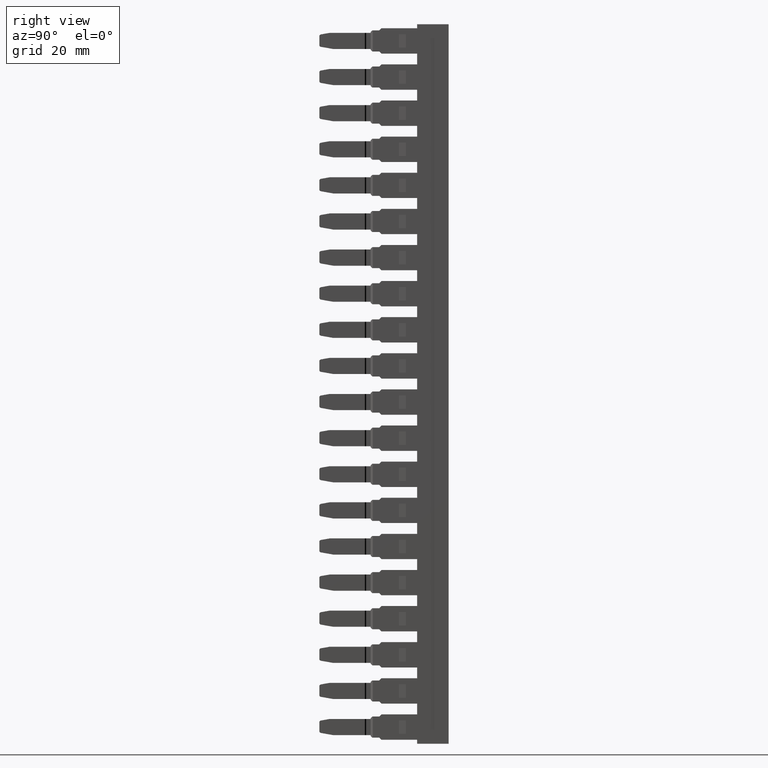
[diagram: clean part render]
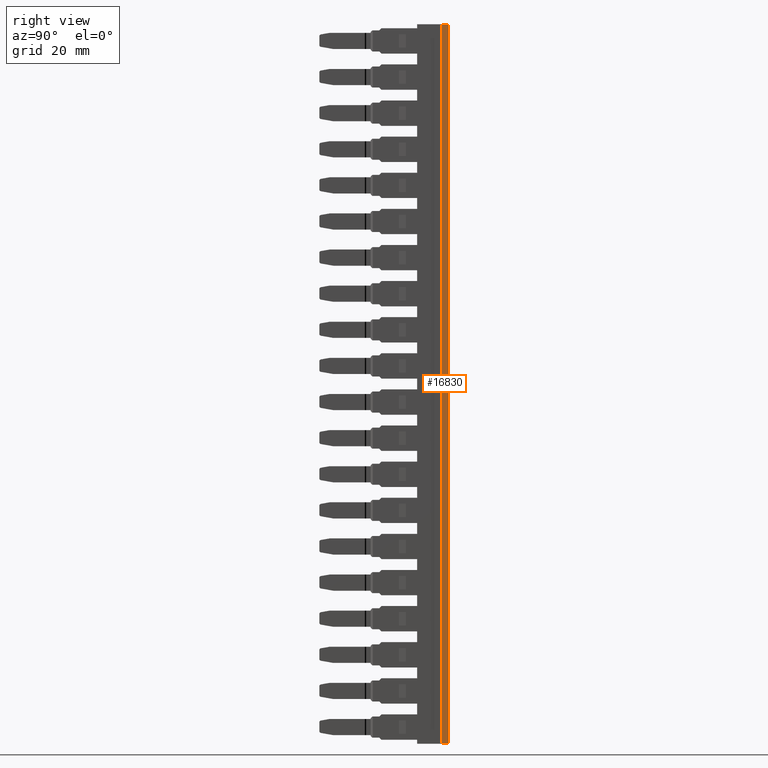
[diagram: same view with one face highlighted and labeled with its STEP entity id]
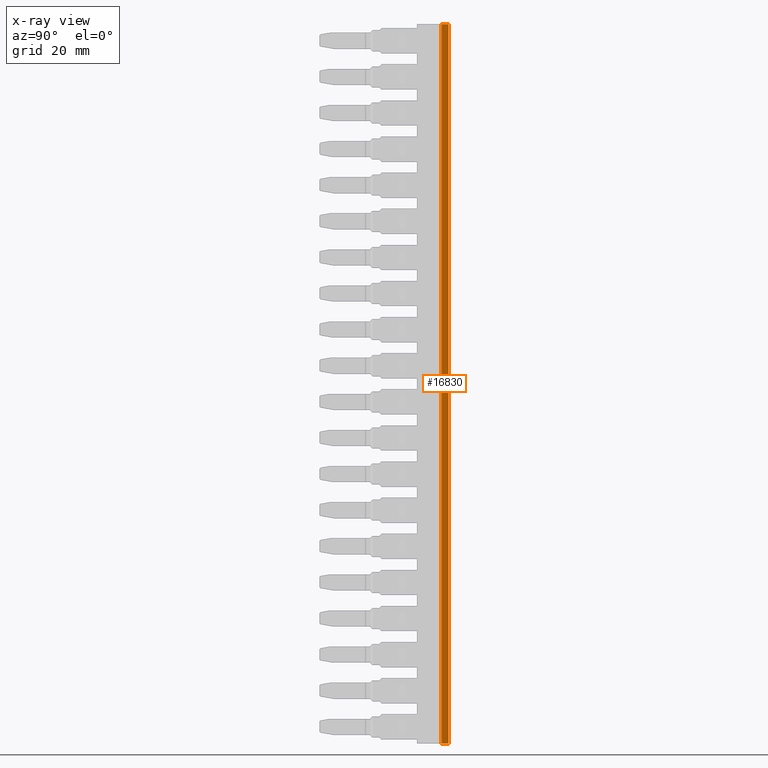
[diagram: x-ray of the same camera — body ghosted, the highlighted face saturated]
A machine part, right view. The second image highlights one B-rep face of the part: STEP entity #16830.
The next image is the same camera in x-ray: the body ghosted, the highlighted face saturated — about 0% of this face is hidden behind the body in this view.
In plain terms, the highlighted planar face has unit normal (1, -0, 0).
Its self-contained STEP definition (entity closure, byte-faithful):
#374 = AXIS2_PLACEMENT_3D ( 'NONE', #11949, #11950, #12041 ) ;
#2055 = VECTOR ( 'NONE', #3019, 1000.000000000000000 ) ;
#2113 = VECTOR ( 'NONE', #3084, 1000.000000000000200 ) ;
#2130 = VECTOR ( 'NONE', #3078, 1000.000000000000000 ) ;
#2137 = VECTOR ( 'NONE', #22621, 1000.000000000000000 ) ;
#2974 = LINE ( 'NONE', #3032, #2055 ) ;
#3019 = DIRECTION ( 'NONE',  ( -5.379506530252374700E-033, -5.672277992797063800E-028, 1.000000000000000000 ) ) ;
#3032 = CARTESIAN_POINT ( 'NONE',  ( 1394.182440319829500, 1077.957091196377200, 63.60600222243470400 ) ) ;
#3078 = DIRECTION ( 'NONE',  ( -4.994244471989924700E-019, -5.266048632863696100E-014, -1.000000000000000000 ) ) ;
#3084 = DIRECTION ( 'NONE',  ( 9.483855581199667300E-006, 0.9999999999550282000, -7.505716123672705500E-030 ) ) ;
#3099 = CARTESIAN_POINT ( 'NONE',  ( 1394.182427990817400, 1076.657091196431100, -38.31585598421686700 ) ) ;
#3106 = LINE ( 'NONE', #3108, #2113 ) ;
#3108 = CARTESIAN_POINT ( 'NONE',  ( 1394.182438900849800, 1077.807470640154200, -123.6999999999424100 ) ) ;
#3111 = LINE ( 'NONE', #3099, #2130 ) ;
#7105 = EDGE_CURVE ( 'NONE', #8284, #8256, #2974, .T. ) ;
#7125 = EDGE_CURVE ( 'NONE', #8245, #8284, #3106, .T. ) ;
#7126 = EDGE_CURVE ( 'NONE', #8283, #8245, #3111, .T. ) ;
#7208 = EDGE_CURVE ( 'NONE', #8256, #8283, #22620, .T. ) ;
#8245 = VERTEX_POINT ( 'NONE', #14064 ) ;
#8256 = VERTEX_POINT ( 'NONE', #14058 ) ;
#8283 = VERTEX_POINT ( 'NONE', #14168 ) ;
#8284 = VERTEX_POINT ( 'NONE', #14100 ) ;
#9530 = EDGE_LOOP ( 'NONE', ( #14457, #14497, #14556, #14554 ) ) ;
#11939 = PLANE ( 'NONE',  #374 ) ;
#11948 = FACE_OUTER_BOUND ( 'NONE', #9530, .T. ) ;
#11949 = CARTESIAN_POINT ( 'NONE',  ( 1394.182440319829500, 1077.957091196375100, -3.099999999942415900 ) ) ;
#11950 = DIRECTION ( 'NONE',  ( 0.9999999999550283100, -9.483855581199669000E-006, 0.0000000000000000000 ) ) ;
#12041 = DIRECTION ( 'NONE',  ( 9.483855581199667300E-006, 0.9999999999550282000, 0.0000000000000000000 ) ) ;
#14058 = CARTESIAN_POINT ( 'NONE',  ( 1394.182440319829500, 1077.957091196374900, 9.800000000002389900 ) ) ;
#14064 = CARTESIAN_POINT ( 'NONE',  ( 1394.182427990817400, 1076.657091196394000, -123.6999999999424100 ) ) ;
#14100 = CARTESIAN_POINT ( 'NONE',  ( 1394.182440319829500, 1077.957091196336300, -123.6999999999424100 ) ) ;
#14168 = CARTESIAN_POINT ( 'NONE',  ( 1394.182427990817400, 1076.657091196431100, 9.800000000002389900 ) ) ;
#14457 = ORIENTED_EDGE ( 'NONE', *, *, #7126, .T. ) ;
#14497 = ORIENTED_EDGE ( 'NONE', *, *, #7125, .T. ) ;
#14554 = ORIENTED_EDGE ( 'NONE', *, *, #7208, .T. ) ;
#14556 = ORIENTED_EDGE ( 'NONE', *, *, #7105, .T. ) ;
#16830 = ADVANCED_FACE ( 'NONE', ( #11948 ), #11939, .T. ) ;
#22620 = LINE ( 'NONE', #22633, #2137 ) ;
#22621 = DIRECTION ( 'NONE',  ( -9.483855581185088200E-006, -0.9999999999550282000, -9.381325129731750000E-031 ) ) ;
#22633 = CARTESIAN_POINT ( 'NONE',  ( 1394.182427990817400, 1076.657091196431100, 9.800000000002389900 ) ) ;